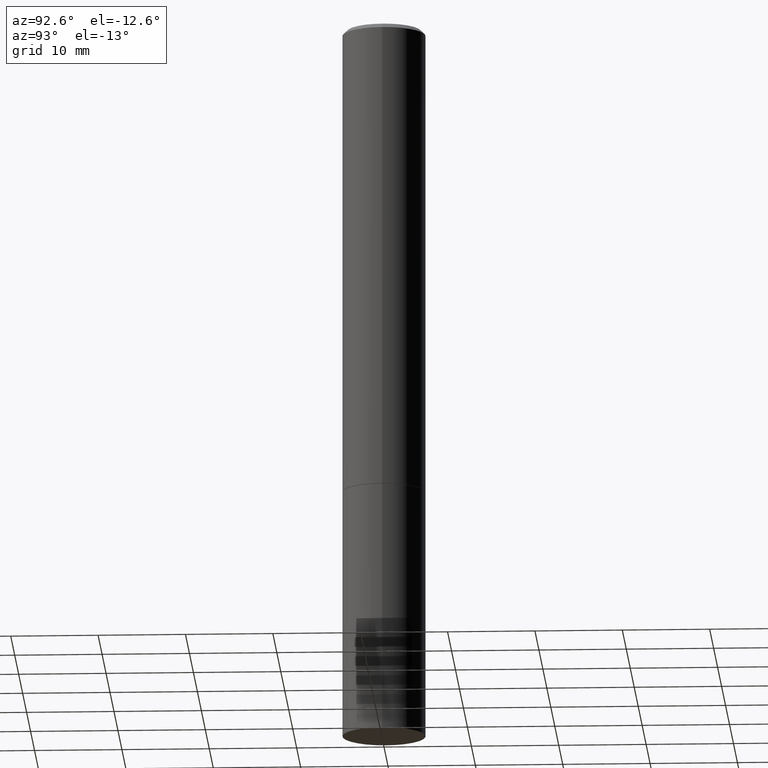
[diagram: clean part render]
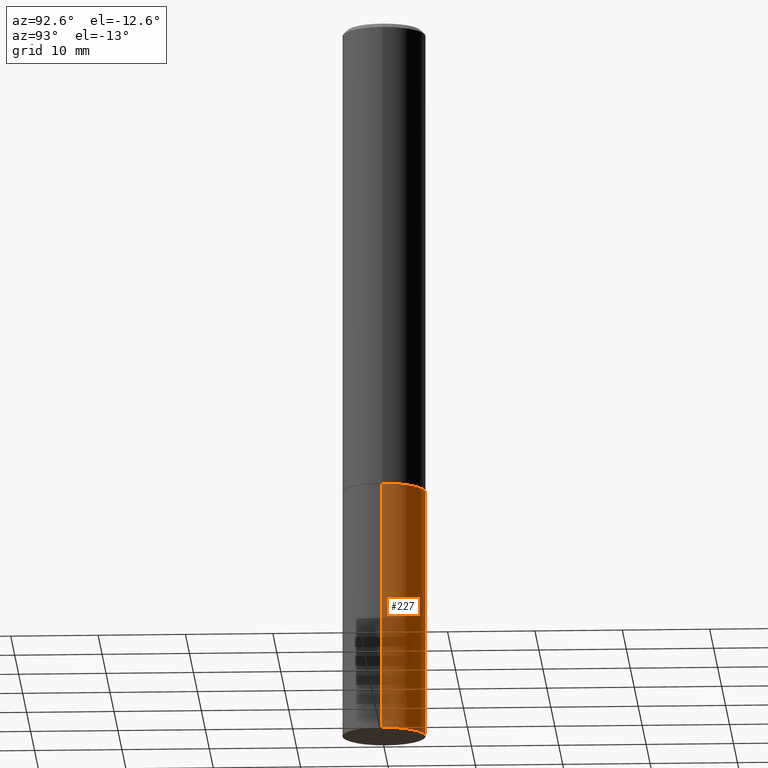
[diagram: same view with one face highlighted and labeled with its STEP entity id]
A machine part, auxiliary view. The second image highlights one B-rep face of the part: STEP entity #227.
In plain terms, the highlighted cylindrical surface (partial cylindrical patch) has radius 4.7625 mm, axis along (-0, 0, 1).
Its self-contained STEP definition (entity closure, byte-faithful):
#13 = DIRECTION ( 'NONE',  ( -2.445468806185136877E-29, 3.491481338843145188E-15, 1.000000000000000000 ) ) ;
#17 = VERTEX_POINT ( 'NONE', #69 ) ;
#21 = VERTEX_POINT ( 'NONE', #120 ) ;
#28 = CARTESIAN_POINT ( 'NONE',  ( -0.1875000000000000278, -8.051088468590765387E-15, -3.250000000000000000 ) ) ;
#43 = LINE ( 'NONE', #147, #286 ) ;
#49 = ORIENTED_EDGE ( 'NONE', *, *, #92, .F. ) ;
#51 = AXIS2_PLACEMENT_3D ( 'NONE', #364, #260, #320 ) ;
#59 = DIRECTION ( 'NONE',  ( -2.445468806185136877E-29, 3.491481338843145188E-15, 1.000000000000000000 ) ) ;
#69 = CARTESIAN_POINT ( 'NONE',  ( 0.1875000000000000278, -1.265661985330639786E-14, -3.250000000000000000 ) ) ;
#74 = EDGE_CURVE ( 'NONE', #17, #135, #43, .T. ) ;
#78 = ORIENTED_EDGE ( 'NONE', *, *, #74, .F. ) ;
#92 = EDGE_CURVE ( 'NONE', #135, #21, #268, .T. ) ;
#120 = CARTESIAN_POINT ( 'NONE',  ( -0.1875000000000000278, -8.051088468590765387E-15, -2.125000000000000000 ) ) ;
#126 = DIRECTION ( 'NONE',  ( -2.445468806185136597E-29, 3.491481338843145583E-15, 1.000000000000000000 ) ) ;
#131 = AXIS2_PLACEMENT_3D ( 'NONE', #264, #354, #189 ) ;
#134 = VERTEX_POINT ( 'NONE', #28 ) ;
#135 = VERTEX_POINT ( 'NONE', #216 ) ;
#147 = CARTESIAN_POINT ( 'NONE',  ( 0.1875000000000000278, -1.309305502066175008E-15, 9.142831454617381013E-30 ) ) ;
#170 = CIRCLE ( 'NONE', #294, 0.1875000000000000278 ) ;
#178 = EDGE_LOOP ( 'NONE', ( #271, #185, #49, #78 ) ) ;
#185 = ORIENTED_EDGE ( 'NONE', *, *, #210, .T. ) ;
#189 = DIRECTION ( 'NONE',  ( 1.000000000000000000, -6.982962677686266711E-15, 0.000000000000000000 ) ) ;
#199 = CARTESIAN_POINT ( 'NONE',  ( -0.1875000000000000278, 1.332267629550188046E-15, -9.223003294227947991E-30 ) ) ;
#200 = FACE_OUTER_BOUND ( 'NONE', #178, .T. ) ;
#204 = DIRECTION ( 'NONE',  ( 1.000000000000000000, -6.982962677686261189E-15, 0.000000000000000000 ) ) ;
#210 = EDGE_CURVE ( 'NONE', #134, #21, #223, .T. ) ;
#216 = CARTESIAN_POINT ( 'NONE',  ( 0.1875000000000000278, -8.728703347107858632E-15, -2.125000000000000000 ) ) ;
#223 = LINE ( 'NONE', #199, #343 ) ;
#227 = ADVANCED_FACE ( 'NONE', ( #200 ), #251, .T. ) ;
#251 = CYLINDRICAL_SURFACE ( 'NONE', #51, 0.1875000000000000278 ) ;
#260 = DIRECTION ( 'NONE',  ( -2.445468806185136597E-29, 3.491481338843145583E-15, 1.000000000000000000 ) ) ;
#263 = CARTESIAN_POINT ( 'NONE',  ( 7.947773620101693940E-29, -1.134731435124022443E-14, -3.250000000000000000 ) ) ;
#264 = CARTESIAN_POINT ( 'NONE',  ( 5.196621213143415268E-29, -7.419397845041683624E-15, -2.125000000000000000 ) ) ;
#268 = CIRCLE ( 'NONE', #131, 0.1875000000000000278 ) ;
#271 = ORIENTED_EDGE ( 'NONE', *, *, #356, .T. ) ;
#286 = VECTOR ( 'NONE', #13, 39.37007874015748143 ) ;
#294 = AXIS2_PLACEMENT_3D ( 'NONE', #263, #126, #204 ) ;
#320 = DIRECTION ( 'NONE',  ( 1.000000000000000000, -6.982962677686265922E-15, 4.876176775795935793E-29 ) ) ;
#343 = VECTOR ( 'NONE', #59, 39.37007874015748143 ) ;
#354 = DIRECTION ( 'NONE',  ( -2.445468806185136597E-29, 3.491481338843145583E-15, 1.000000000000000000 ) ) ;
#356 = EDGE_CURVE ( 'NONE', #17, #134, #170, .T. ) ;
#364 = CARTESIAN_POINT ( 'NONE',  ( 0.000000000000000000, 0.000000000000000000, 0.000000000000000000 ) ) ;